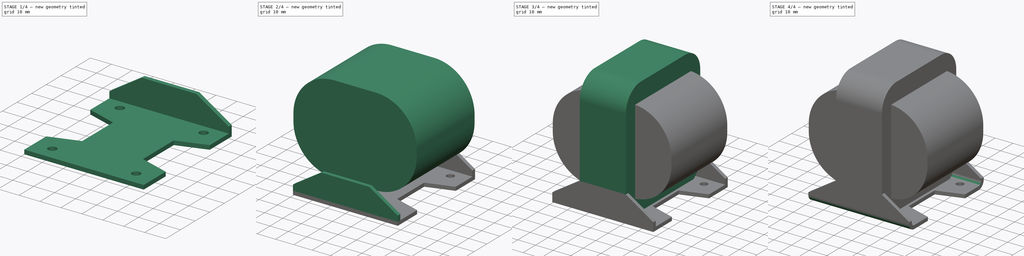
[diagram: build sequence overview — one tinted view per stage of 4, left to right]
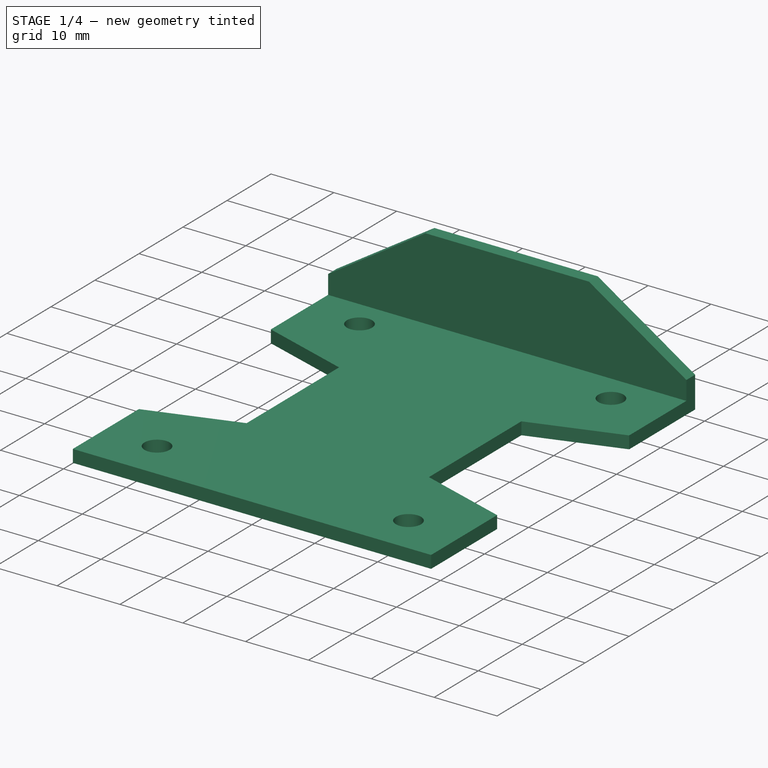
[diagram: stage 1 of 4 — iso view after this stage's code; geometry added in this stage tinted green]
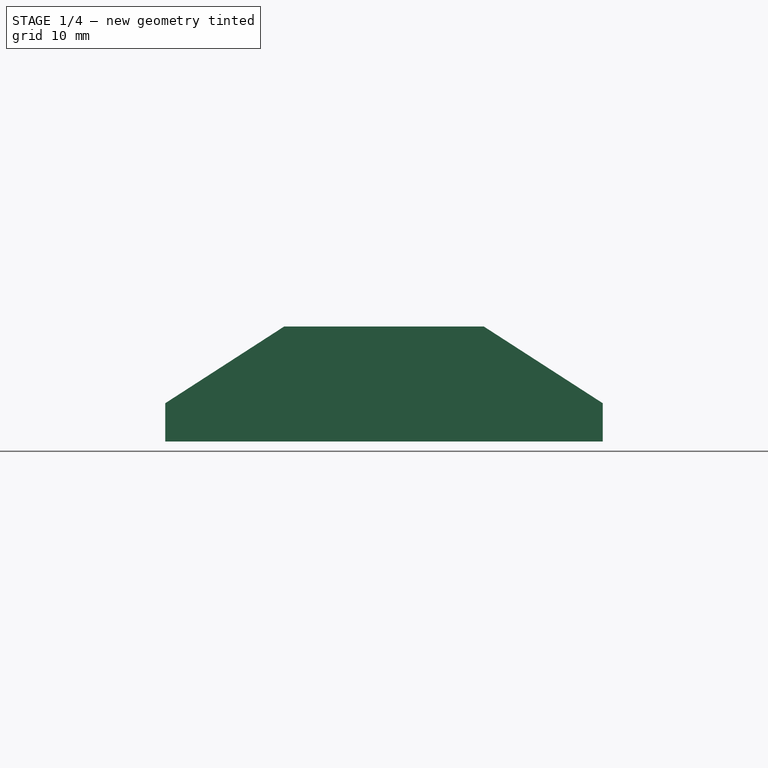
[diagram: stage 1 of 4 — front view after this stage's code; geometry added in this stage tinted green]
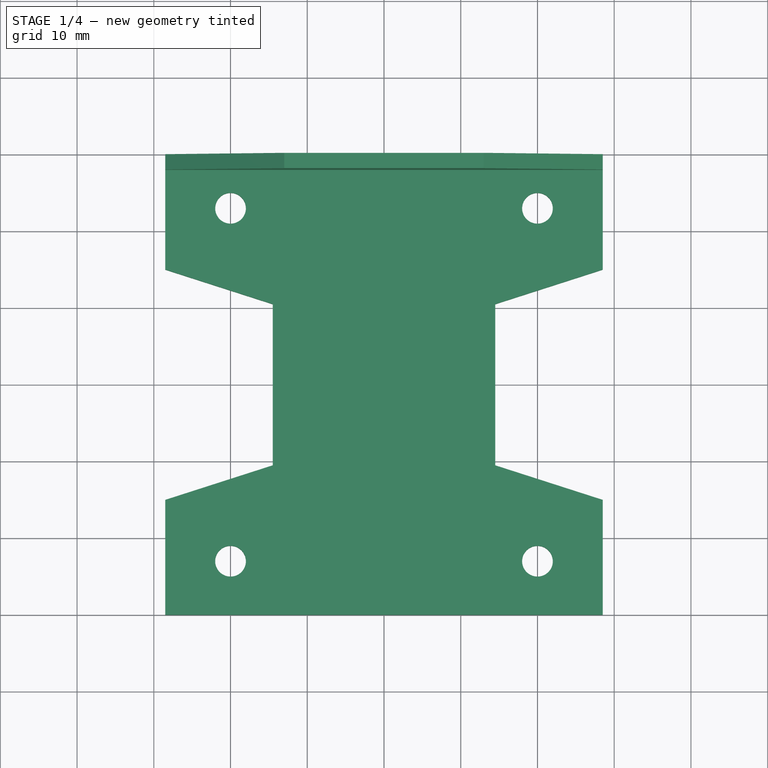
[diagram: stage 1 of 4 — top view after this stage's code; geometry added in this stage tinted green]
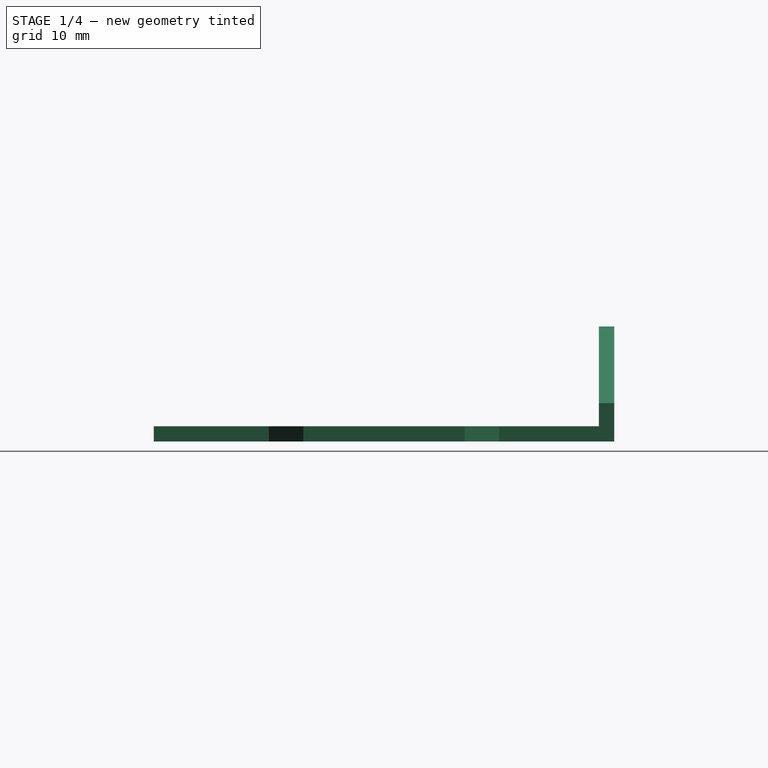
[diagram: stage 1 of 4 — right view after this stage's code; geometry added in this stage tinted green]
FCSTD DOCUMENT  (FreeCAD 0.19R)
Label: Power_transformer
License: All rights reserved
LicenseURL: http://en.wikipedia.org/wiki/All_rights_reserved
objects: Sketcher::SketchObject×5, PartDesign::Pad×5, PartDesign::Fillet×4, PartDesign::Body×4, PartDesign::Boolean×1
note: 28 computed .brp shape members not serialized (recipe doc carries the construction recipe); baked Part::Feature solids carry a one-line shape summary decoded from their .brp

FEATURE [PartDesign::Body] Body001
  Group = -> [Sketch001,Pad001,Fillet001]
  Origin = -> Origin001
  Tip = -> Fillet001
FEATURE [Sketcher::SketchObject] Sketch002
  FullyConstrained = true
  MapMode = 5
  Support = -> [XY_Plane002]
  sketch-geometry (18):
    g0: LineSegment StartX=28.5 StartY=30 StartZ=0 EndX=-28.5 EndY=30 EndZ=0
    g1: LineSegment StartX=-28.5 StartY=30 StartZ=0 EndX=-28.5 EndY=-30 EndZ=0
    g2: LineSegment StartX=-28.5 StartY=-30 StartZ=0 EndX=28.5 EndY=-30 EndZ=0
    g3: LineSegment StartX=28.5 StartY=-30 StartZ=0 EndX=28.5 EndY=30 EndZ=0
    g4: LineSegment StartX=-28.5 StartY=30 StartZ=0 EndX=-28.5 EndY=15 EndZ=0
    g5: LineSegment StartX=-28.5 StartY=15 StartZ=0 EndX=-14.5 EndY=10.5 EndZ=0
    g6: LineSegment StartX=-14.5 StartY=10.5 StartZ=0 EndX=-14.5 EndY=-10.5 EndZ=0
    g7: LineSegment StartX=-14.5 StartY=-10.5 StartZ=0 EndX=-28.5 EndY=-15 EndZ=0
    g8: LineSegment StartX=-28.5 StartY=-15 StartZ=0 EndX=-28.5 EndY=-30 EndZ=0
    g9: LineSegment StartX=28.5 StartY=-30 StartZ=0 EndX=28.5 EndY=-15 EndZ=0
    g10: LineSegment StartX=28.5 StartY=-15 StartZ=0 EndX=14.5 EndY=-10.5 EndZ=0
    g11: LineSegment StartX=14.5 StartY=-10.5 StartZ=0 EndX=14.5 EndY=10.5 EndZ=0
    g12: LineSegment StartX=14.5 StartY=10.5 StartZ=0 EndX=28.5 EndY=15 EndZ=0
    g13: LineSegment StartX=28.5 StartY=15 StartZ=0 EndX=28.5 EndY=30 EndZ=0
    g14: Circle CenterX=-20 CenterY=23 CenterZ=0 NormalX=0 NormalY=0 NormalZ=1 AngleXU=0 Radius=2
    g15: Circle CenterX=20 CenterY=23 CenterZ=0 NormalX=0 NormalY=0 NormalZ=1 AngleXU=0 Radius=2
    g16: Circle CenterX=20 CenterY=-23 CenterZ=0 NormalX=0 NormalY=0 NormalZ=1 AngleXU=0 Radius=2
    g17: Circle CenterX=-20 CenterY=-23 CenterZ=0 NormalX=0 NormalY=0 NormalZ=1 AngleXU=0 Radius=2
  constraints (45):
    c: Coincident(g0,g1)
    c: Coincident(g1,g2)
    c: Coincident(g2,g3)
    c: Coincident(g3,g0)
    c: Horizontal(g0)
    c: Vertical(g3)
    c: Symmetric(g2,g1,g-2)
    c: Symmetric(g1,g0,g-1)
    c: DistanceY(g1,g1) = 60
    c: DistanceX(g0,g0) = 57
    c: Coincident(g4,g0)
    c: PointOnObject(g4,g1)
    c: Coincident(g4,g5)
    c: Coincident(g5,g6)
    c: Coincident(g6,g7)
    c: PointOnObject(g7,g1)
    c: Coincident(g7,g8)
    c: Coincident(g8,g1)
    c: Coincident(g2,g9)
    c: PointOnObject(g9,g3)
    c: Coincident(g9,g10)
    c: Coincident(g10,g11)
    c: Coincident(g11,g12)
    c: PointOnObject(g12,g3)
    c: Coincident(g12,g13)
    c: Coincident(g13,g0)
    c: Symmetric(g6,g5,g-1)
    c: Symmetric(g10,g11,g-1)
    c: Symmetric(g10,g6,g-2)
    c: Equal(g8,g9)
    c: Equal(g9,g4)
    c: Equal(g4,g13)
    c: DistanceX(g5,g11) = 29
    c: DistanceY(g13,g13) = 15
    c: DistanceY(g11,g11) = 21
    c: Symmetric(g17,g16,g-2)
    c: Symmetric(g17,g14,g-1)
    c: Horizontal(g14,g15)
    c: Vertical(g15,g16)
    c: Equal(g15,g14)
    c: Equal(g14,g17)
    c: Equal(g17,g16)
    c: DistanceX(g14,g15) = 40
    c: DistanceY(g16,g15) = 46
    c: Diameter(g14) = 4
FEATURE [PartDesign::Pad] Pad002
  Direction = (1,1,1)
  Length = 2
  Length2 = 100
  Profile = -> Sketch002
  Type = 0
FEATURE [Sketcher::SketchObject] Sketch003
  FullyConstrained = true
  MapMode = 5
  Placement = pos=(0,30,0) rot=(0,0.707107,0.707107;3.14159rad)
  Support = -> [Pad002]
  sketch-geometry (6):
    g0: LineSegment StartX=-28.5 StartY=0 StartZ=0 EndX=28.5 EndY=-1e-16 EndZ=0
    g1: LineSegment StartX=28.5 StartY=-1e-16 StartZ=0 EndX=28.5 EndY=5 EndZ=0
    g2: LineSegment StartX=28.5 StartY=5 StartZ=0 EndX=13 EndY=15 EndZ=0
    g3: LineSegment StartX=13 StartY=15 StartZ=0 EndX=-13 EndY=15 EndZ=0
    g4: LineSegment StartX=-13 StartY=15 StartZ=0 EndX=-28.5 EndY=5 EndZ=0
    g5: LineSegment StartX=-28.5 StartY=5 StartZ=0 EndX=-28.5 EndY=0 EndZ=0
  constraints (16):
    c: Coincident(g0,g1)
    c: Coincident(g1,g2)
    c: Coincident(g2,g3)
    c: Coincident(g3,g4)
    c: Coincident(g4,g5)
    c: Coincident(g5,g0)
    c: Vertical(g5)
    c: Vertical(g1)
    c: Symmetric(g0,g0,g-2)
    c: Symmetric(g3,g2,g-2)
    c: Equal(g1,g5)
    c: PointOnObject(g0,g-1)
    c: DistanceX(g3,g3) = 26
    c: DistanceX(g0,g0) = 57
    c: DistanceY(g-1,g2) = 15
    c: DistanceY(g1,g1) = 5
FEATURE [PartDesign::Pad] Pad003
  BaseFeature = -> Pad002
  Direction = (1,1,1)
  Length = 2
  Length2 = 100
  Profile = -> Sketch003
  Reversed = true
  Type = 0
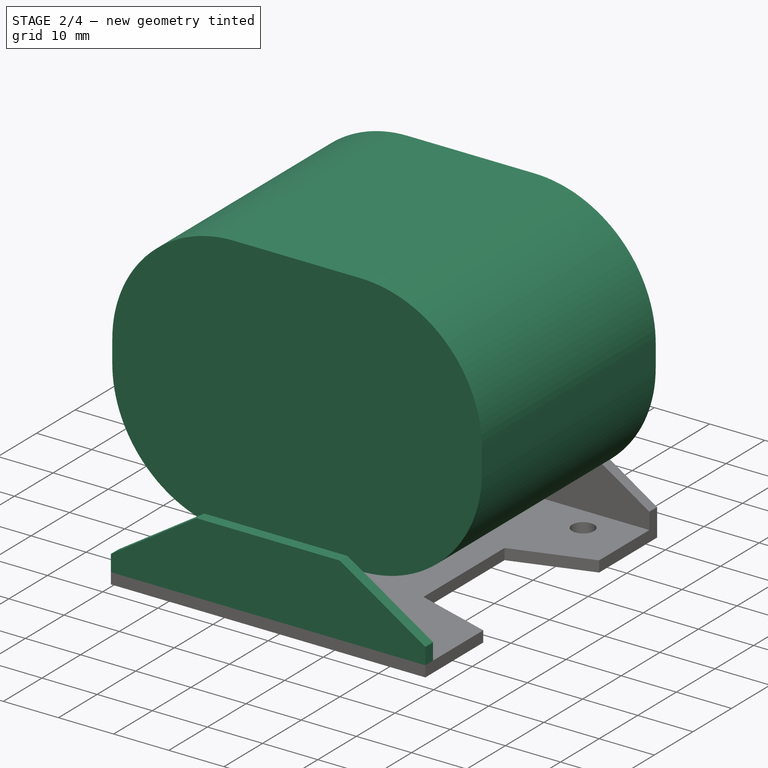
[diagram: stage 2 of 4 — iso view after this stage's code; geometry added in this stage tinted green]
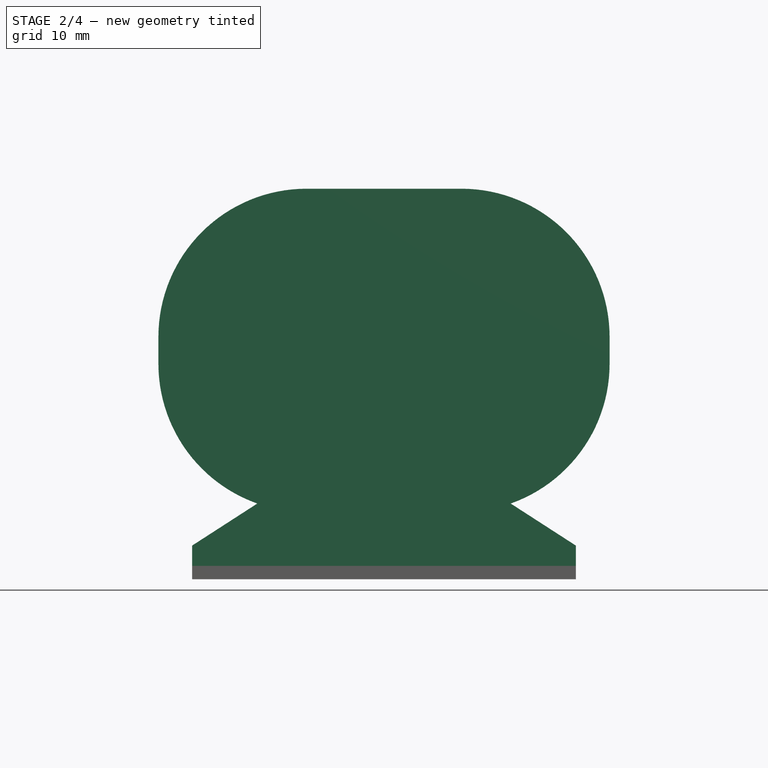
[diagram: stage 2 of 4 — front view after this stage's code; geometry added in this stage tinted green]
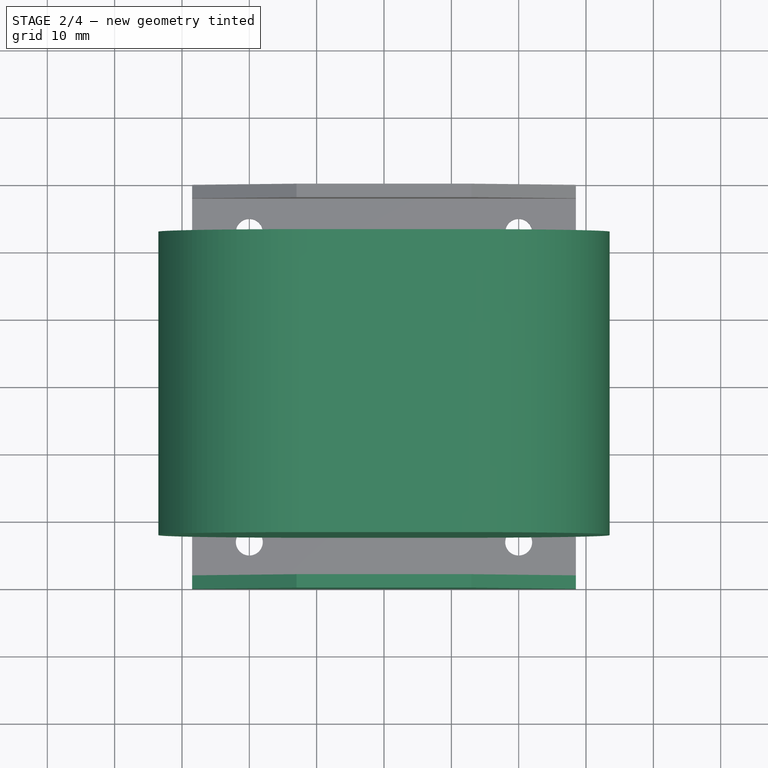
[diagram: stage 2 of 4 — top view after this stage's code; geometry added in this stage tinted green]
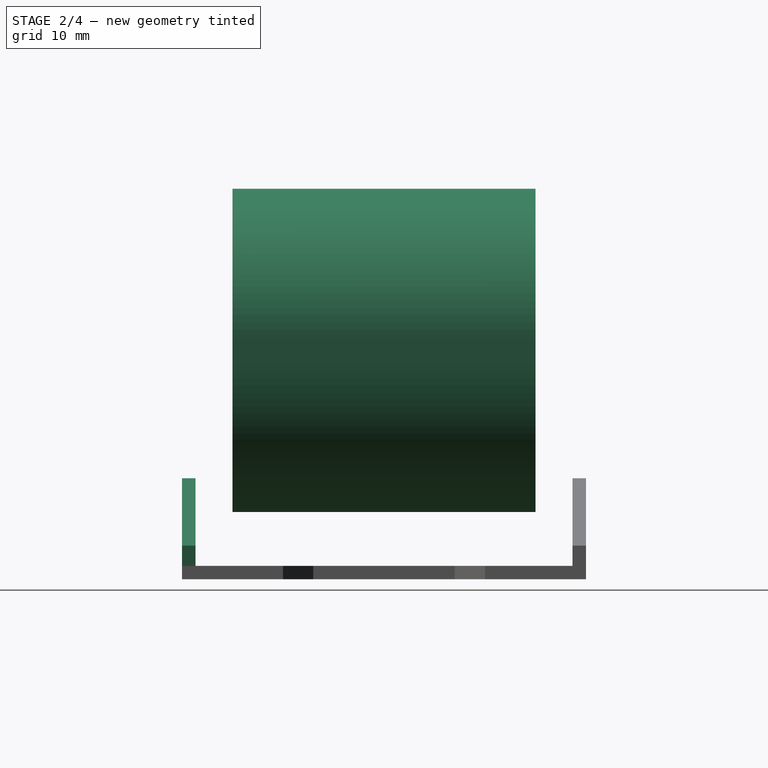
[diagram: stage 2 of 4 — right view after this stage's code; geometry added in this stage tinted green]
FEATURE [PartDesign::Body] Body
  Group = -> [Sketch,Pad,Fillet]
  Origin = -> Origin
  Tip = -> Fillet
FEATURE [Sketcher::SketchObject] Sketch001
  FullyConstrained = true
  MapMode = 5
  Placement = pos=(0,0,0) rot=(1,0,0;1.5708rad)
  Support = -> [XZ_Plane001]
  sketch-geometry (4):
    g0: LineSegment StartX=-33.5 StartY=58 StartZ=0 EndX=33.5 EndY=58 EndZ=0
    g1: LineSegment StartX=33.5 StartY=58 StartZ=0 EndX=33.5 EndY=10 EndZ=0
    g2: LineSegment StartX=33.5 StartY=10 StartZ=0 EndX=-33.5 EndY=10 EndZ=0
    g3: LineSegment StartX=-33.5 StartY=10 StartZ=0 EndX=-33.5 EndY=58 EndZ=0
  constraints (11):
    c: Coincident(g0,g1)
    c: Coincident(g1,g2)
    c: Coincident(g2,g3)
    c: Coincident(g3,g0)
    c: Horizontal(g0)
    c: Vertical(g1)
    c: Vertical(g3)
    c: Symmetric(g2,g1,g-2)
    c: DistanceY(g1,g1) = 48
    c: DistanceX(g0,g0) = 67
    c: DistanceY(g-1,g1) = 10
FEATURE [PartDesign::Pad] Pad001
  Direction = (1,1,1)
  Length = 22.5
  Length2 = 22.5
  Placement = pos=(0,0,0) rot=(1,0,0;1.5708rad)
  Profile = -> Sketch001
  Type = 4
FEATURE [PartDesign::Fillet] Fillet001
  Base = -> Pad001 [Edge8,Edge1,Edge2,Edge5]
  BaseFeature = -> Pad001
  Placement = pos=(0,0,0) rot=(1,0,0;1.5708rad)
  Radius = 22
  SupportTransform = false
FEATURE [Sketcher::SketchObject] Sketch004
  FullyConstrained = true
  MapMode = 5
  Placement = pos=(0,-30,0) rot=(1,0,0;1.5708rad)
  Support = -> [Pad003]
  sketch-geometry (6):
    g0: LineSegment StartX=-13 StartY=15 StartZ=0 EndX=13 EndY=15 EndZ=0
    g1: LineSegment StartX=13 StartY=15 StartZ=0 EndX=28.5 EndY=5 EndZ=0
    g2: LineSegment StartX=28.5 StartY=5 StartZ=0 EndX=28.5 EndY=0 EndZ=0
    g3: LineSegment StartX=28.5 StartY=0 StartZ=0 EndX=-28.5 EndY=0 EndZ=0
    g4: LineSegment StartX=-28.5 StartY=0 StartZ=0 EndX=-28.5 EndY=5 EndZ=0
    g5: LineSegment StartX=-28.5 StartY=5 StartZ=0 EndX=-13 EndY=15 EndZ=0
  constraints (16):
    c: Coincident(g0,g1)
    c: Coincident(g1,g2)
    c: Vertical(g2)
    c: Coincident(g2,g3)
    c: Coincident(g3,g4)
    c: Vertical(g4)
    c: Coincident(g4,g5)
    c: Coincident(g5,g0)
    c: Symmetric(g0,g0,g-2)
    c: Symmetric(g3,g2,g-2)
    c: Equal(g4,g2)
    c: PointOnObject(g2,g-1)
    c: DistanceX(g3,g3) = 57
    c: DistanceX(g0,g0) = 26
    c: DistanceY(g2,g2) = 5
    c: DistanceY(g-1,g0) = 15
FEATURE [PartDesign::Pad] Pad004
  BaseFeature = -> Pad003
  Direction = (1,1,1)
  Length = 2
  Length2 = 100
  Profile = -> Sketch004
  Reversed = true
  Type = 0
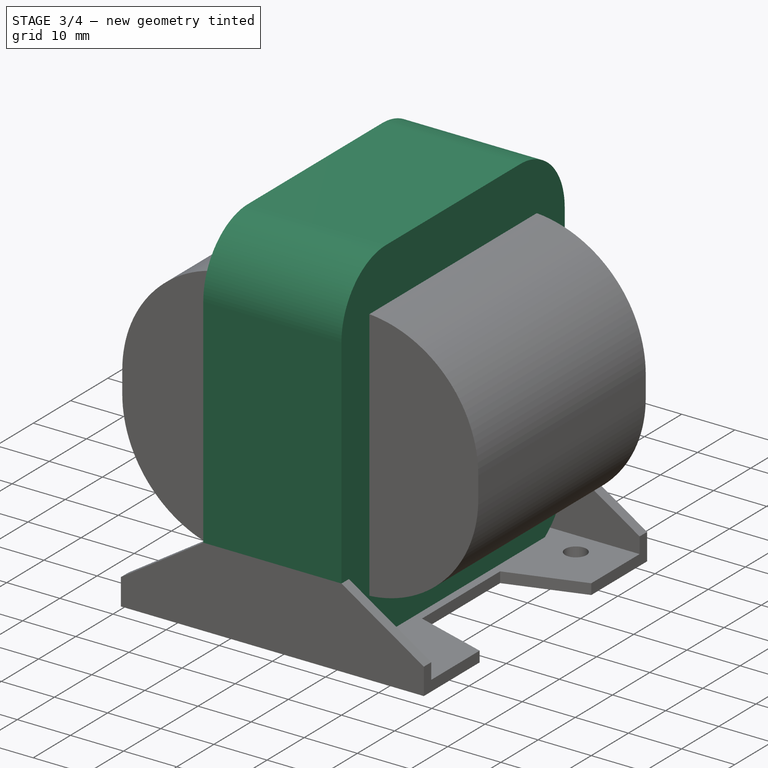
[diagram: stage 3 of 4 — iso view after this stage's code; geometry added in this stage tinted green]
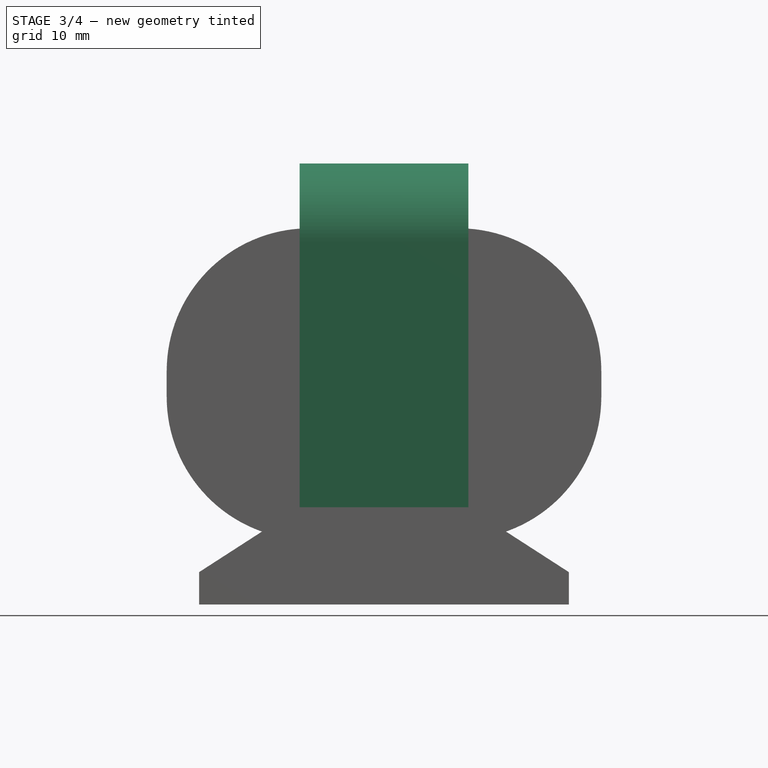
[diagram: stage 3 of 4 — front view after this stage's code; geometry added in this stage tinted green]
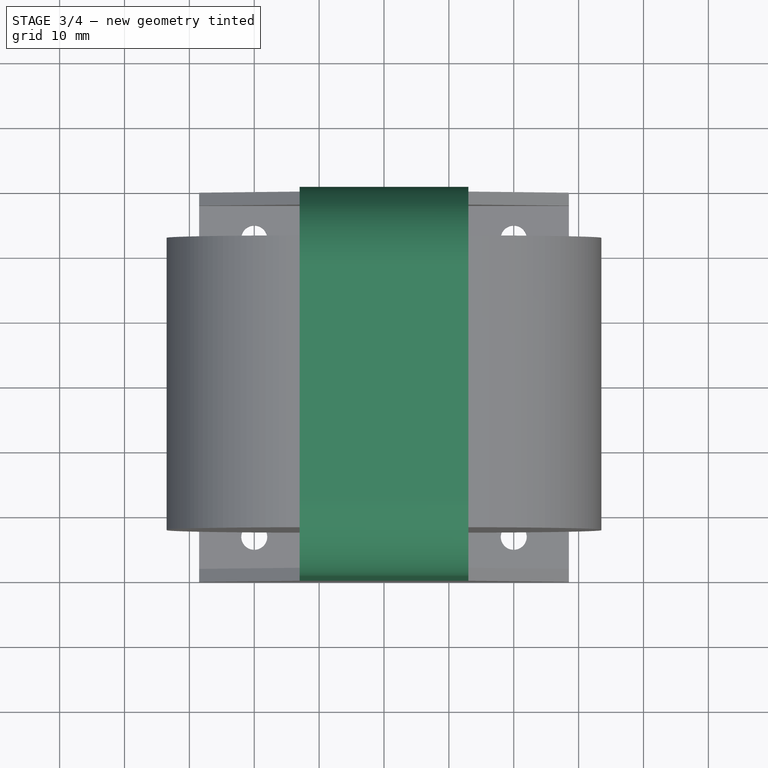
[diagram: stage 3 of 4 — top view after this stage's code; geometry added in this stage tinted green]
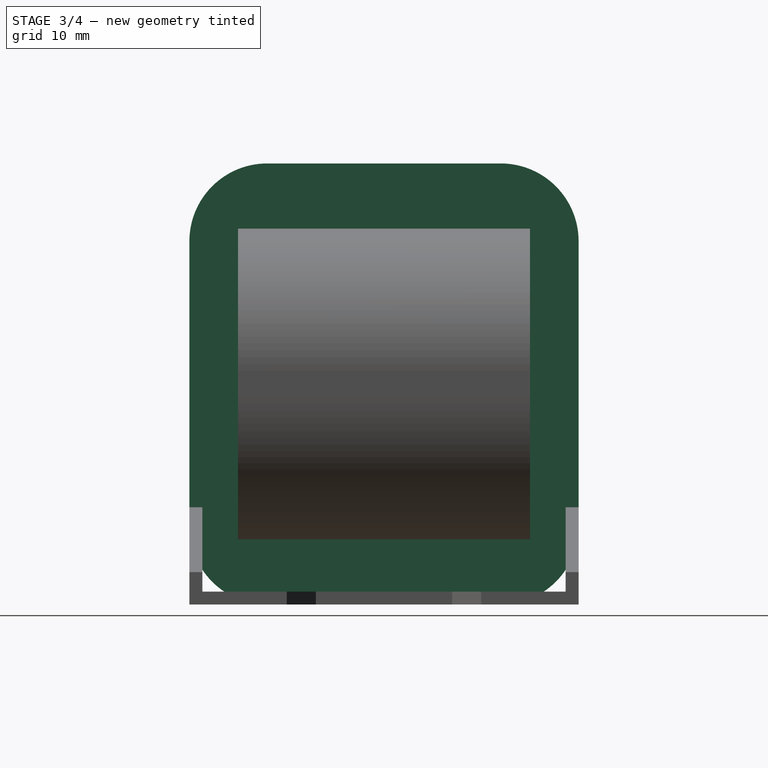
[diagram: stage 3 of 4 — right view after this stage's code; geometry added in this stage tinted green]
FEATURE [Sketcher::SketchObject] Sketch
  FullyConstrained = true
  MapMode = 5
  Placement = pos=(0,0,0) rot=(0.57735,0.57735,0.57735;2.0944rad)
  Support = -> [YZ_Plane]
  sketch-geometry (4):
    g0: LineSegment StartX=-30 StartY=68 StartZ=0 EndX=30 EndY=68 EndZ=0
    g1: LineSegment StartX=30 StartY=68 StartZ=0 EndX=30 EndY=0 EndZ=0
    g2: LineSegment StartX=30 StartY=0 StartZ=0 EndX=-30 EndY=0 EndZ=0
    g3: LineSegment StartX=-30 StartY=0 StartZ=0 EndX=-30 EndY=68 EndZ=0
  constraints (11):
    c: Coincident(g0,g1)
    c: Coincident(g1,g2)
    c: Coincident(g2,g3)
    c: Coincident(g3,g0)
    c: Horizontal(g0)
    c: Vertical(g3)
    c: Symmetric(g2,g1,g-2)
    c: PointOnObject(g2,g-1)
    c: Vertical(g1)
    c: DistanceX(g2,g2) = 60
    c: DistanceY(g1,g1) = 68
FEATURE [PartDesign::Pad] Pad
  Direction = (1,1,1)
  Length = 13
  Length2 = 13
  Placement = pos=(0,0,0) rot=(0.57735,0.57735,0.57735;2.0944rad)
  Profile = -> Sketch
  Type = 4
FEATURE [PartDesign::Fillet] Fillet
  Base = -> Pad [Edge8,Edge1,Edge2,Edge5]
  BaseFeature = -> Pad
  Placement = pos=(0,0,0) rot=(0.57735,0.57735,0.57735;2.0944rad)
  Radius = 12
  SupportTransform = false
FEATURE [PartDesign::Body] Body002
  Group = -> [Sketch002,Pad002,Sketch003,Pad003,Sketch004,Pad004]
  Origin = -> Origin002
  Tip = -> Pad004
FEATURE [PartDesign::Boolean] Boolean
  Group = -> [Body,Body001,Body002]
  Refine = true
  Type = 0
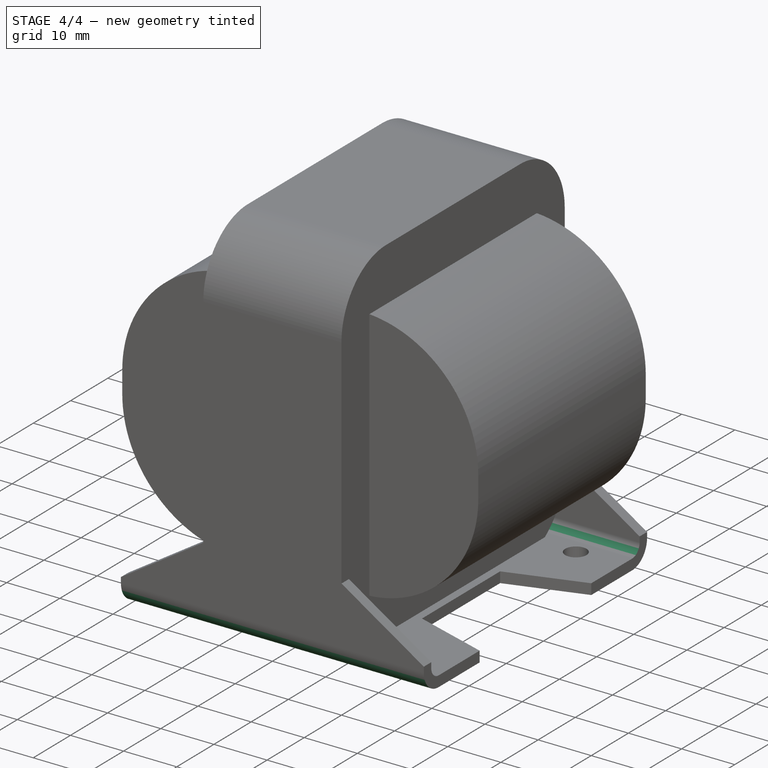
[diagram: stage 4 of 4 — iso view after this stage's code; geometry added in this stage tinted green]
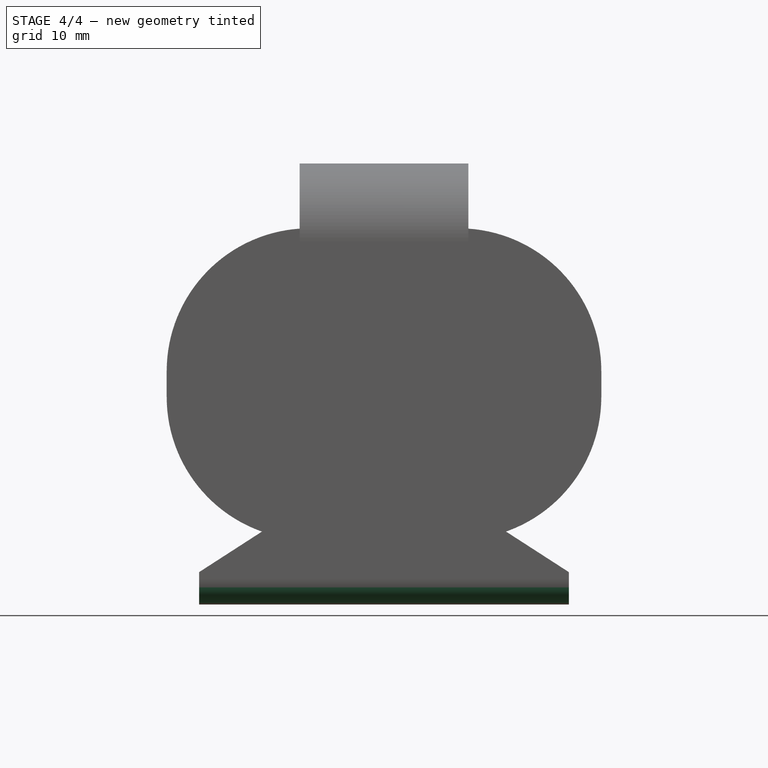
[diagram: stage 4 of 4 — front view after this stage's code; geometry added in this stage tinted green]
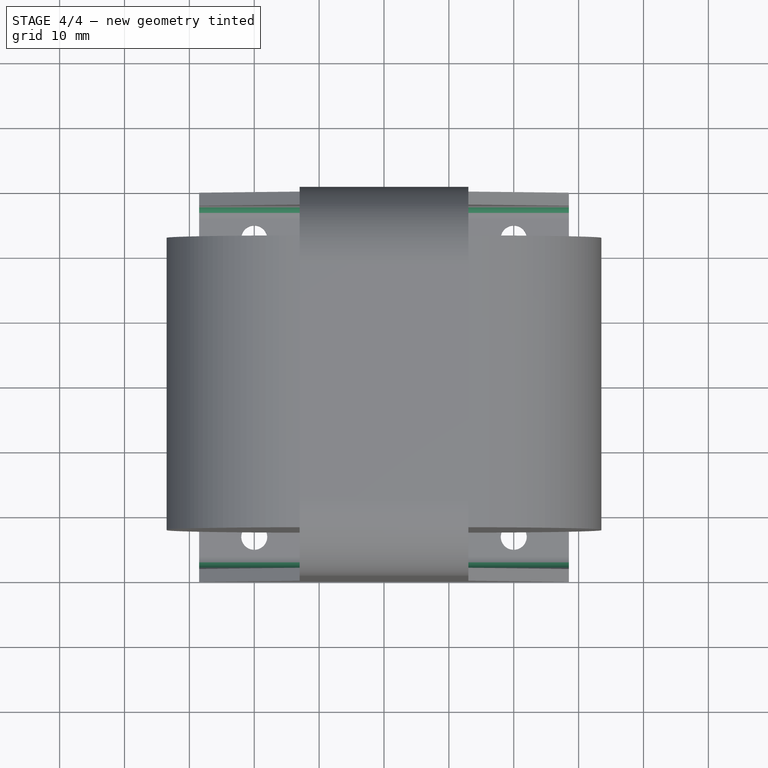
[diagram: stage 4 of 4 — top view after this stage's code; geometry added in this stage tinted green]
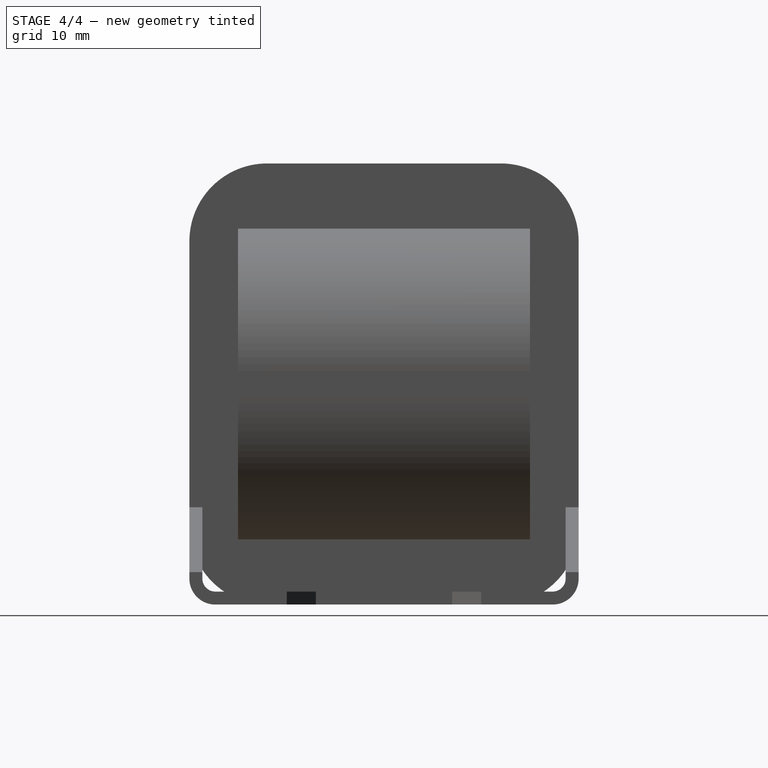
[diagram: stage 4 of 4 — right view after this stage's code; geometry added in this stage tinted green]
FEATURE [PartDesign::Fillet] Fillet002
  Base = -> Boolean [Edge21,Edge10]
  BaseFeature = -> Boolean
  Radius = 2
  SupportTransform = false
FEATURE [PartDesign::Fillet] Fillet003
  Base = -> Fillet002 [Edge79,Edge75]
  BaseFeature = -> Fillet002
  Radius = 4
  SupportTransform = false
FEATURE [PartDesign::Body] Body003
  Group = -> [Boolean,Fillet002,Fillet003]
  Origin = -> Origin003
  Tip = -> Fillet003
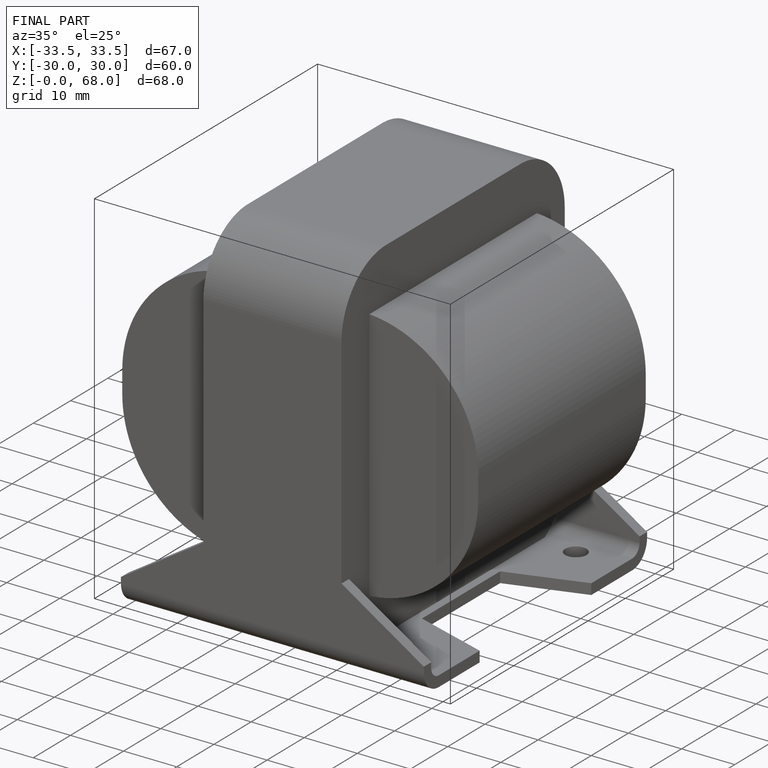
[diagram: finished part — iso view with bounding-box wireframe]
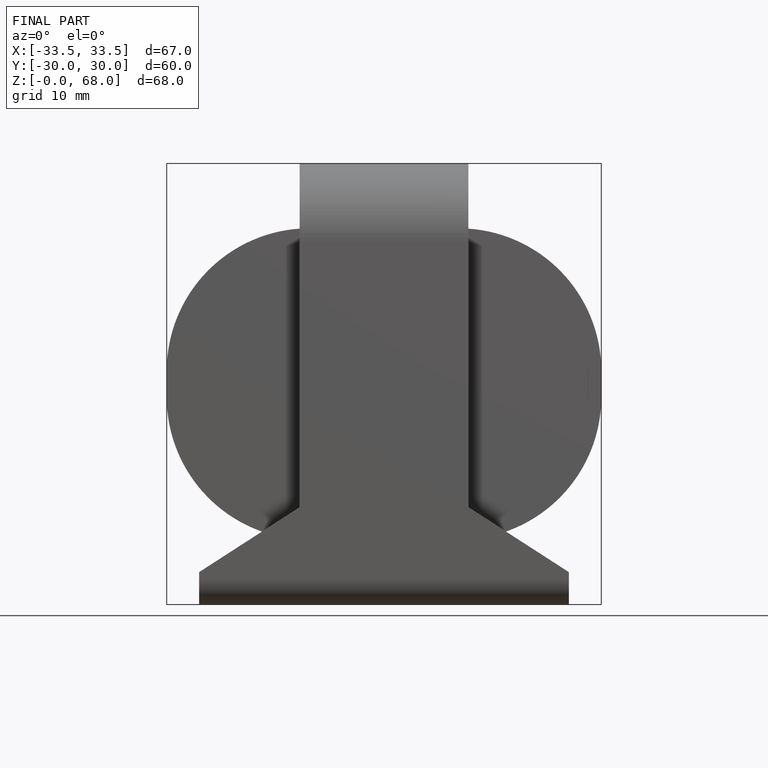
[diagram: finished part — front view with bounding-box wireframe]
